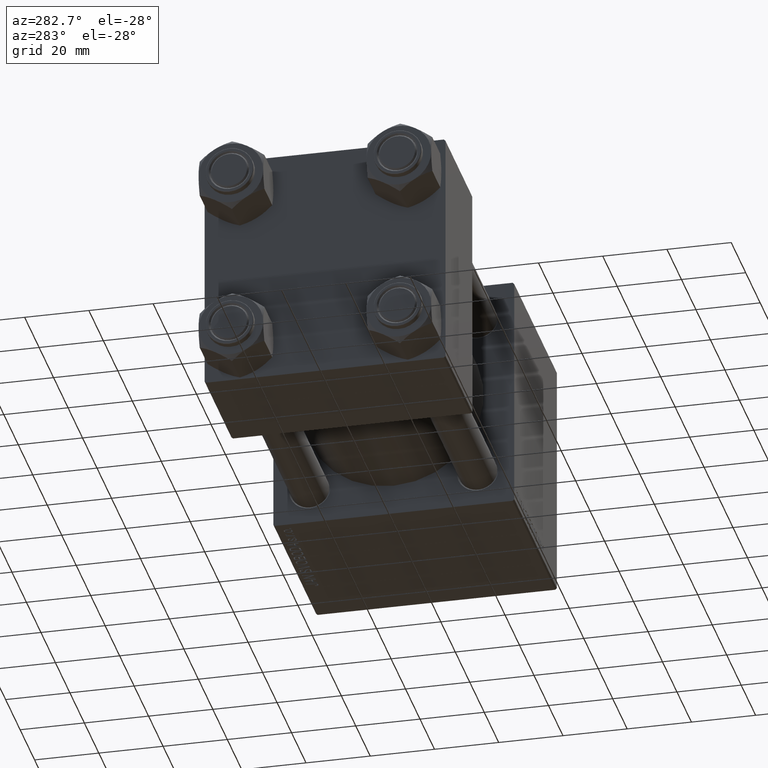
[diagram: clean part render]
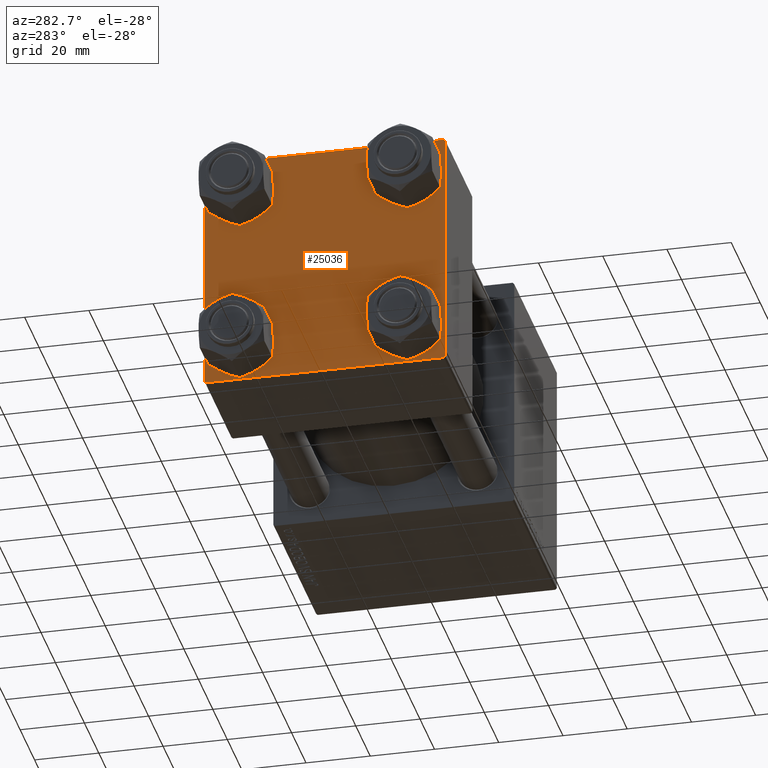
[diagram: same view with one face highlighted and labeled with its STEP entity id]
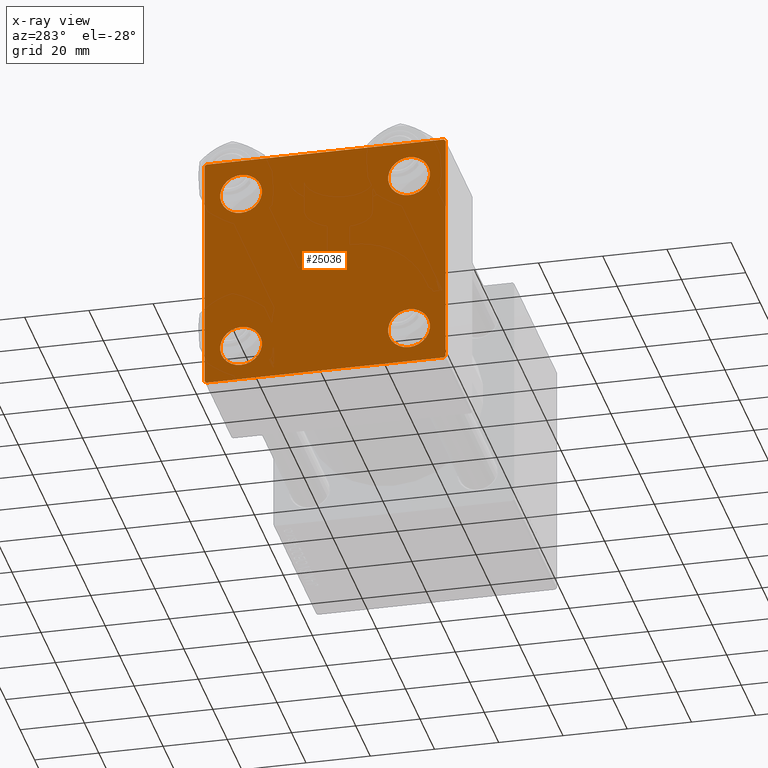
[diagram: x-ray of the same camera — body ghosted, the highlighted face saturated]
A machine part, auxiliary view. The second image highlights one B-rep face of the part: STEP entity #25036.
The next image is the same camera in x-ray: the body ghosted, the highlighted face saturated — about 0% of this face is hidden behind the body in this view.
In plain terms, the highlighted planar face has unit normal (-1, 0, 0).
Its self-contained STEP definition (entity closure, byte-faithful):
#522 = VERTEX_POINT ( 'NONE', #28825 ) ;
#968 = EDGE_CURVE ( 'NONE', #22571, #28229, #2511, .T. ) ;
#1478 = CARTESIAN_POINT ( 'NONE',  ( 0.000000000000000000, -26.14999999999999147, -19.64999999999999503 ) ) ;
#1579 = VERTEX_POINT ( 'NONE', #33267 ) ;
#1732 = VECTOR ( 'NONE', #23224, 1000.000000000000000 ) ;
#2134 = CARTESIAN_POINT ( 'NONE',  ( 0.000000000000000000, 26.14999999999999858, -26.15000000000000213 ) ) ;
#2158 = CIRCLE ( 'NONE', #32972, 6.500000000000015987 ) ;
#2234 = ORIENTED_EDGE ( 'NONE', *, *, #31629, .T. ) ;
#2511 = CIRCLE ( 'NONE', #12246, 6.500000000000015987 ) ;
#3466 = EDGE_LOOP ( 'NONE', ( #35895, #41920 ) ) ;
#3586 = FACE_BOUND ( 'NONE', #21282, .T. ) ;
#3822 = EDGE_CURVE ( 'NONE', #48105, #1579, #33465, .T. ) ;
#3862 = ORIENTED_EDGE ( 'NONE', *, *, #28431, .T. ) ;
#3895 = CARTESIAN_POINT ( 'NONE',  ( 0.000000000000000000, 26.14999999999999858, 32.65000000000002700 ) ) ;
#4055 = EDGE_CURVE ( 'NONE', #6603, #11770, #22077, .T. ) ;
#5083 = AXIS2_PLACEMENT_3D ( 'NONE', #43052, #8023, #31383 ) ;
#5346 = CARTESIAN_POINT ( 'NONE',  ( 0.000000000000000000, 26.14999999999999858, 19.64999999999998437 ) ) ;
#5686 = DIRECTION ( 'NONE',  ( 1.000000000000000000, -0.000000000000000000, 0.000000000000000000 ) ) ;
#5945 = CARTESIAN_POINT ( 'NONE',  ( 0.000000000000000000, 26.14999999999999858, -19.64999999999998792 ) ) ;
#6603 = VERTEX_POINT ( 'NONE', #5346 ) ;
#6908 = AXIS2_PLACEMENT_3D ( 'NONE', #42735, #11258, #42478 ) ;
#7060 = LINE ( 'NONE', #7552, #43040 ) ;
#7184 = DIRECTION ( 'NONE',  ( 0.000000000000000000, 0.000000000000000000, 1.000000000000000000 ) ) ;
#7286 = CARTESIAN_POINT ( 'NONE',  ( 0.000000000000000000, 26.14999999999999858, -26.15000000000000213 ) ) ;
#7292 = LINE ( 'NONE', #14898, #15740 ) ;
#7552 = CARTESIAN_POINT ( 'NONE',  ( 0.000000000000000000, -37.50000000000000711, 37.49999999999999289 ) ) ;
#8023 = DIRECTION ( 'NONE',  ( 1.000000000000000000, -0.000000000000000000, 0.000000000000000000 ) ) ;
#8337 = DIRECTION ( 'NONE',  ( 0.000000000000000000, 0.000000000000000000, 1.000000000000000000 ) ) ;
#8542 = CIRCLE ( 'NONE', #6908, 6.500000000000023093 ) ;
#9275 = EDGE_CURVE ( 'NONE', #23627, #522, #23154, .T. ) ;
#9385 = DIRECTION ( 'NONE',  ( 1.000000000000000000, -0.000000000000000000, 0.000000000000000000 ) ) ;
#10909 = ORIENTED_EDGE ( 'NONE', *, *, #3822, .T. ) ;
#11234 = ORIENTED_EDGE ( 'NONE', *, *, #38970, .T. ) ;
#11258 = DIRECTION ( 'NONE',  ( 1.000000000000000000, -0.000000000000000000, 0.000000000000000000 ) ) ;
#11553 = AXIS2_PLACEMENT_3D ( 'NONE', #27877, #43110, #8337 ) ;
#11684 = CARTESIAN_POINT ( 'NONE',  ( 0.000000000000000000, -37.50000000000000711, 36.99999999999999289 ) ) ;
#11770 = VERTEX_POINT ( 'NONE', #3895 ) ;
#12246 = AXIS2_PLACEMENT_3D ( 'NONE', #13255, #28765, #24201 ) ;
#12426 = CARTESIAN_POINT ( 'NONE',  ( 0.000000000000000000, 26.14999999999999858, 26.15000000000000213 ) ) ;
#13255 = CARTESIAN_POINT ( 'NONE',  ( 0.000000000000000000, -26.14999999999999147, -26.15000000000000924 ) ) ;
#14025 = VECTOR ( 'NONE', #22897, 1000.000000000000114 ) ;
#14075 = EDGE_CURVE ( 'NONE', #24302, #19853, #7060, .T. ) ;
#14112 = VECTOR ( 'NONE', #27700, 1000.000000000000000 ) ;
#14898 = CARTESIAN_POINT ( 'NONE',  ( 0.000000000000000000, 37.49999999999999289, -37.50000000000000000 ) ) ;
#15333 = LINE ( 'NONE', #23448, #49763 ) ;
#15343 = EDGE_CURVE ( 'NONE', #23627, #47898, #34406, .T. ) ;
#15554 = CARTESIAN_POINT ( 'NONE',  ( 0.000000000000000000, -37.00000000000000711, 37.49999999999999289 ) ) ;
#15728 = ORIENTED_EDGE ( 'NONE', *, *, #32385, .T. ) ;
#15740 = VECTOR ( 'NONE', #49420, 1000.000000000000000 ) ;
#15821 = AXIS2_PLACEMENT_3D ( 'NONE', #7286, #18696, #37502 ) ;
#16269 = CARTESIAN_POINT ( 'NONE',  ( 0.000000000000000000, -37.24999999999975842, -37.25000000000027001 ) ) ;
#17092 = VERTEX_POINT ( 'NONE', #42914 ) ;
#18048 = EDGE_CURVE ( 'NONE', #28229, #22571, #34230, .T. ) ;
#18696 = DIRECTION ( 'NONE',  ( 1.000000000000000000, -0.000000000000000000, 0.000000000000000000 ) ) ;
#18718 = DIRECTION ( 'NONE',  ( 0.000000000000000000, 9.251858538542971581E-17, -1.000000000000000000 ) ) ;
#18815 = FACE_BOUND ( 'NONE', #3466, .T. ) ;
#19313 = FACE_BOUND ( 'NONE', #38592, .T. ) ;
#19539 = VERTEX_POINT ( 'NONE', #34797 ) ;
#19618 = AXIS2_PLACEMENT_3D ( 'NONE', #28543, #5686, #21427 ) ;
#19853 = VERTEX_POINT ( 'NONE', #39732 ) ;
#21146 = LINE ( 'NONE', #36635, #29125 ) ;
#21282 = EDGE_LOOP ( 'NONE', ( #2234, #21418 ) ) ;
#21418 = ORIENTED_EDGE ( 'NONE', *, *, #4055, .T. ) ;
#21427 = DIRECTION ( 'NONE',  ( 0.000000000000000000, 0.000000000000000000, 1.000000000000000000 ) ) ;
#21474 = EDGE_CURVE ( 'NONE', #45743, #19539, #15333, .T. ) ;
#22000 = EDGE_CURVE ( 'NONE', #29336, #19853, #28209, .T. ) ;
#22077 = CIRCLE ( 'NONE', #5083, 6.500000000000023093 ) ;
#22396 = EDGE_CURVE ( 'NONE', #19539, #29336, #7292, .T. ) ;
#22571 = VERTEX_POINT ( 'NONE', #41006 ) ;
#22871 = DIRECTION ( 'NONE',  ( -1.000000000000000000, 0.000000000000000000, -0.000000000000000000 ) ) ;
#22897 = DIRECTION ( 'NONE',  ( 0.000000000000000000, 0.7071067811865474617, -0.7071067811865474617 ) ) ;
#23154 = LINE ( 'NONE', #34081, #14025 ) ;
#23224 = DIRECTION ( 'NONE',  ( 0.000000000000000000, -1.000000000000000000, -9.251858538542971581E-17 ) ) ;
#23257 = CARTESIAN_POINT ( 'NONE',  ( 0.000000000000000000, 37.49999999999999289, 37.50000000000000000 ) ) ;
#23448 = CARTESIAN_POINT ( 'NONE',  ( 0.000000000000000000, 37.24999999999998579, -37.24999999999998579 ) ) ;
#23627 = VERTEX_POINT ( 'NONE', #39965 ) ;
#23761 = VERTEX_POINT ( 'NONE', #5945 ) ;
#24201 = DIRECTION ( 'NONE',  ( 0.000000000000000000, 0.000000000000000000, 1.000000000000000000 ) ) ;
#24302 = VERTEX_POINT ( 'NONE', #11684 ) ;
#24870 = EDGE_CURVE ( 'NONE', #1579, #48105, #8542, .T. ) ;
#25036 = ADVANCED_FACE ( 'NONE', ( #19313, #18815, #26697, #3586, #49783 ), #38360, .T. ) ;
#26697 = FACE_BOUND ( 'NONE', #44349, .T. ) ;
#27304 = AXIS2_PLACEMENT_3D ( 'NONE', #12426, #9385, #40353 ) ;
#27700 = DIRECTION ( 'NONE',  ( 0.000000000000000000, -0.7071067811865524577, 0.7071067811865426878 ) ) ;
#27863 = ORIENTED_EDGE ( 'NONE', *, *, #15343, .F. ) ;
#27877 = CARTESIAN_POINT ( 'NONE',  ( 0.000000000000000000, -26.14999999999999147, 26.15000000000000924 ) ) ;
#28209 = LINE ( 'NONE', #16269, #14112 ) ;
#28229 = VERTEX_POINT ( 'NONE', #1478 ) ;
#28431 = EDGE_CURVE ( 'NONE', #522, #45743, #42555, .T. ) ;
#28543 = CARTESIAN_POINT ( 'NONE',  ( 0.000000000000000000, -26.14999999999999147, -26.15000000000000924 ) ) ;
#28765 = DIRECTION ( 'NONE',  ( 1.000000000000000000, -0.000000000000000000, 0.000000000000000000 ) ) ;
#28825 = CARTESIAN_POINT ( 'NONE',  ( 0.000000000000000000, 37.49999999999999289, 37.00000000000000000 ) ) ;
#29125 = VECTOR ( 'NONE', #32576, 1000.000000000000114 ) ;
#29336 = VERTEX_POINT ( 'NONE', #40011 ) ;
#30006 = CARTESIAN_POINT ( 'NONE',  ( 0.000000000000000000, 0.000000000000000000, 0.000000000000000000 ) ) ;
#30433 = AXIS2_PLACEMENT_3D ( 'NONE', #30006, #22871, #31000 ) ;
#31000 = DIRECTION ( 'NONE',  ( -0.000000000000000000, 0.000000000000000000, 1.000000000000000000 ) ) ;
#31231 = CIRCLE ( 'NONE', #15821, 6.500000000000015987 ) ;
#31383 = DIRECTION ( 'NONE',  ( 0.000000000000000000, 0.000000000000000000, 1.000000000000000000 ) ) ;
#31629 = EDGE_CURVE ( 'NONE', #11770, #6603, #38645, .T. ) ;
#32057 = VECTOR ( 'NONE', #38749, 1000.000000000000000 ) ;
#32385 = EDGE_CURVE ( 'NONE', #17092, #23761, #2158, .T. ) ;
#32576 = DIRECTION ( 'NONE',  ( -0.000000000000000000, 0.7071067811865474617, 0.7071067811865474617 ) ) ;
#32972 = AXIS2_PLACEMENT_3D ( 'NONE', #2134, #48568, #7184 ) ;
#33267 = CARTESIAN_POINT ( 'NONE',  ( 0.000000000000000000, -26.14999999999999147, 19.64999999999999147 ) ) ;
#33465 = CIRCLE ( 'NONE', #11553, 6.500000000000023093 ) ;
#34081 = CARTESIAN_POINT ( 'NONE',  ( 0.000000000000000000, 37.24999999999999289, 37.24999999999999289 ) ) ;
#34230 = CIRCLE ( 'NONE', #19618, 6.500000000000015987 ) ;
#34395 = ORIENTED_EDGE ( 'NONE', *, *, #22396, .T. ) ;
#34406 = LINE ( 'NONE', #46314, #1732 ) ;
#34797 = CARTESIAN_POINT ( 'NONE',  ( 0.000000000000000000, 36.99999999999997868, -37.50000000000000000 ) ) ;
#35265 = ORIENTED_EDGE ( 'NONE', *, *, #14075, .F. ) ;
#35895 = ORIENTED_EDGE ( 'NONE', *, *, #18048, .T. ) ;
#36635 = CARTESIAN_POINT ( 'NONE',  ( -0.000000000000000000, -37.25000000000000000, 37.25000000000000000 ) ) ;
#37502 = DIRECTION ( 'NONE',  ( 0.000000000000000000, 0.000000000000000000, 1.000000000000000000 ) ) ;
#37576 = ORIENTED_EDGE ( 'NONE', *, *, #49380, .T. ) ;
#38360 = PLANE ( 'NONE',  #30433 ) ;
#38592 = EDGE_LOOP ( 'NONE', ( #10909, #49341 ) ) ;
#38645 = CIRCLE ( 'NONE', #27304, 6.500000000000023093 ) ;
#38749 = DIRECTION ( 'NONE',  ( 0.000000000000000000, 0.000000000000000000, -1.000000000000000000 ) ) ;
#38970 = EDGE_CURVE ( 'NONE', #24302, #47898, #21146, .T. ) ;
#39190 = ORIENTED_EDGE ( 'NONE', *, *, #21474, .T. ) ;
#39492 = ORIENTED_EDGE ( 'NONE', *, *, #9275, .T. ) ;
#39732 = CARTESIAN_POINT ( 'NONE',  ( 0.000000000000000000, -37.50000000000000000, -37.00000000000003553 ) ) ;
#39935 = EDGE_LOOP ( 'NONE', ( #3862, #39190, #34395, #43189, #35265, #11234, #27863, #39492 ) ) ;
#39965 = CARTESIAN_POINT ( 'NONE',  ( 0.000000000000000000, 36.99999999999999289, 37.50000000000000000 ) ) ;
#40011 = CARTESIAN_POINT ( 'NONE',  ( 0.000000000000000000, -37.00000000000002132, -37.50000000000000711 ) ) ;
#40353 = DIRECTION ( 'NONE',  ( 0.000000000000000000, 0.000000000000000000, 1.000000000000000000 ) ) ;
#41006 = CARTESIAN_POINT ( 'NONE',  ( 0.000000000000000000, -26.14999999999999147, -32.65000000000002700 ) ) ;
#41920 = ORIENTED_EDGE ( 'NONE', *, *, #968, .T. ) ;
#42478 = DIRECTION ( 'NONE',  ( 0.000000000000000000, 0.000000000000000000, 1.000000000000000000 ) ) ;
#42493 = DIRECTION ( 'NONE',  ( -0.000000000000000000, -0.7071067811865474617, -0.7071067811865474617 ) ) ;
#42555 = LINE ( 'NONE', #23257, #32057 ) ;
#42735 = CARTESIAN_POINT ( 'NONE',  ( 0.000000000000000000, -26.14999999999999147, 26.15000000000000924 ) ) ;
#42914 = CARTESIAN_POINT ( 'NONE',  ( 0.000000000000000000, 26.14999999999999858, -32.65000000000001990 ) ) ;
#43040 = VECTOR ( 'NONE', #18718, 1000.000000000000000 ) ;
#43052 = CARTESIAN_POINT ( 'NONE',  ( 0.000000000000000000, 26.14999999999999858, 26.15000000000000213 ) ) ;
#43110 = DIRECTION ( 'NONE',  ( 1.000000000000000000, -0.000000000000000000, 0.000000000000000000 ) ) ;
#43189 = ORIENTED_EDGE ( 'NONE', *, *, #22000, .T. ) ;
#44349 = EDGE_LOOP ( 'NONE', ( #37576, #15728 ) ) ;
#45743 = VERTEX_POINT ( 'NONE', #49064 ) ;
#46314 = CARTESIAN_POINT ( 'NONE',  ( 0.000000000000000000, 37.49999999999999289, 37.50000000000000000 ) ) ;
#47898 = VERTEX_POINT ( 'NONE', #15554 ) ;
#48105 = VERTEX_POINT ( 'NONE', #49453 ) ;
#48568 = DIRECTION ( 'NONE',  ( 1.000000000000000000, -0.000000000000000000, 0.000000000000000000 ) ) ;
#49064 = CARTESIAN_POINT ( 'NONE',  ( 0.000000000000000000, 37.49999999999999289, -36.99999999999998579 ) ) ;
#49341 = ORIENTED_EDGE ( 'NONE', *, *, #24870, .T. ) ;
#49380 = EDGE_CURVE ( 'NONE', #23761, #17092, #31231, .T. ) ;
#49420 = DIRECTION ( 'NONE',  ( 0.000000000000000000, -1.000000000000000000, -9.251858538542972814E-17 ) ) ;
#49453 = CARTESIAN_POINT ( 'NONE',  ( 0.000000000000000000, -26.14999999999999147, 32.65000000000003411 ) ) ;
#49763 = VECTOR ( 'NONE', #42493, 1000.000000000000114 ) ;
#49783 = FACE_OUTER_BOUND ( 'NONE', #39935, .T. ) ;